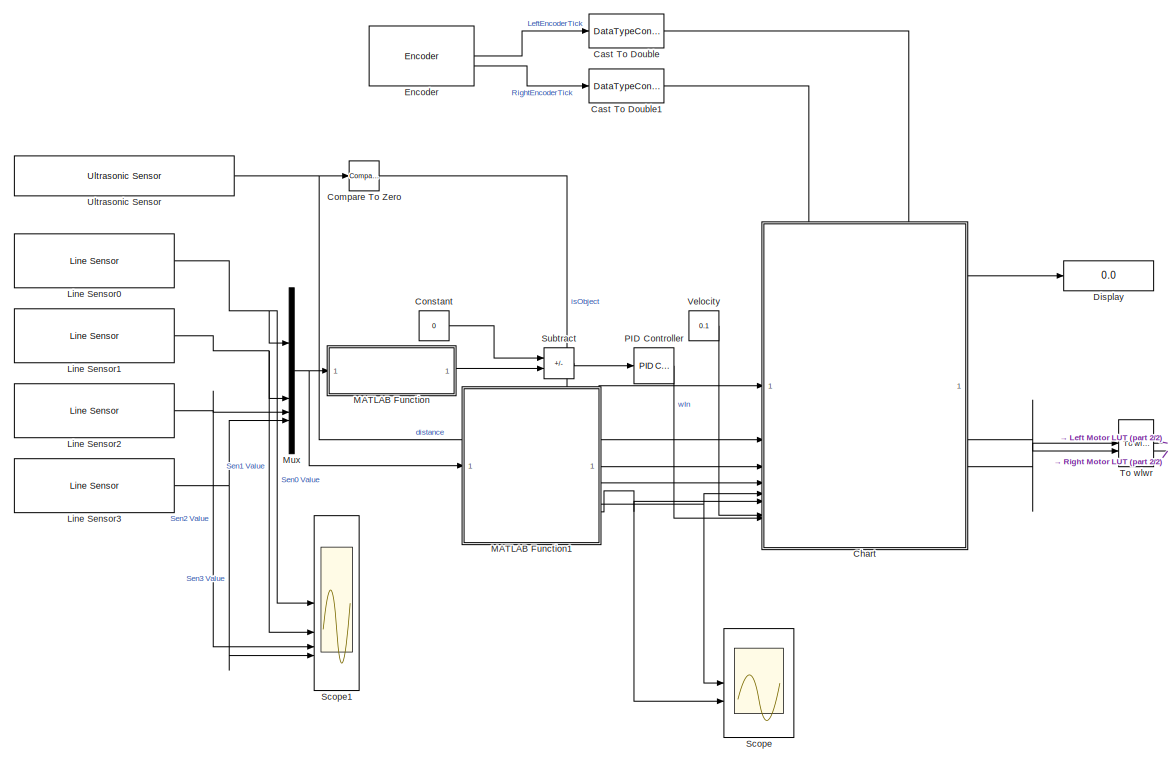
[diagram: root canvas - part 1/2, left side, full height]
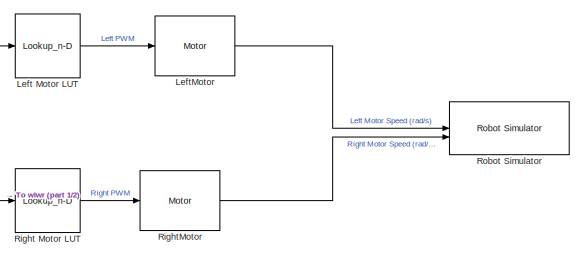
[diagram: root canvas - part 2/2, middle right region]
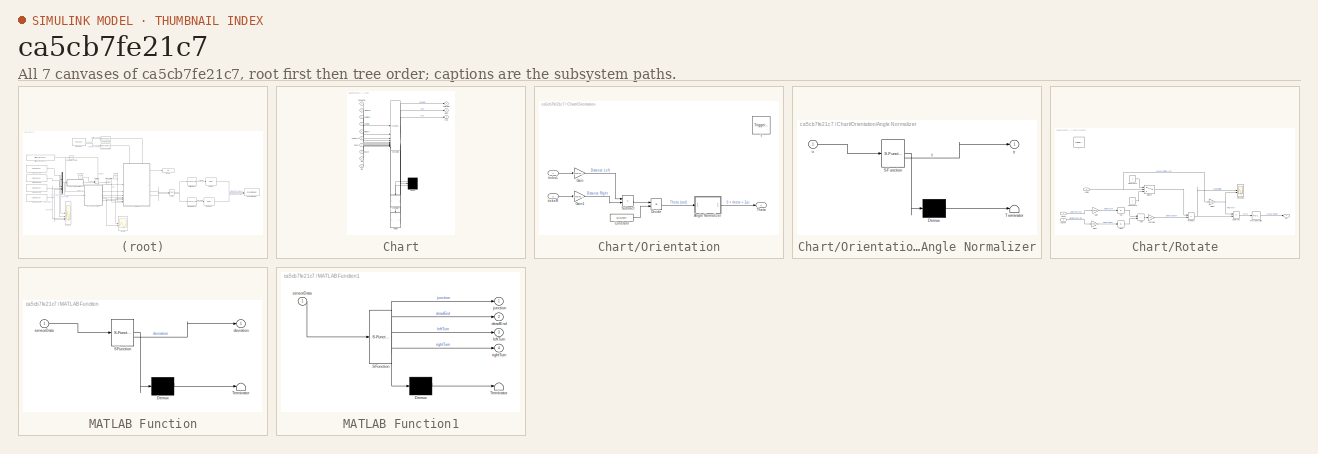
[diagram: thumbnail index - all 7 canvases of the model, root first then tree order]
MODEL slx_ca5cb7fe21c7
KIND model
CONFIG AbsTol = auto
CONFIG EnableMultiTasking = off
CONFIG FixedStep = 0.01
CONFIG MaxStep = auto
CONFIG MinStep = auto
CONFIG RelTol = 1e-3
CONFIG SampleTimeConstraint = Unconstrained
CONFIG SolverName = FixedStepDiscrete
CONFIG StartTime = 0.0
CONFIG StopTime = 60
BLOCK [DataTypeConversion] Cast To Double
  OutDataTypeStr = double
  RndMeth = Floor
  SaturateOnIntegerOverflow = off
BLOCK [DataTypeConversion] Cast To Double1
  OutDataTypeStr = double
  RndMeth = Floor
  SaturateOnIntegerOverflow = off
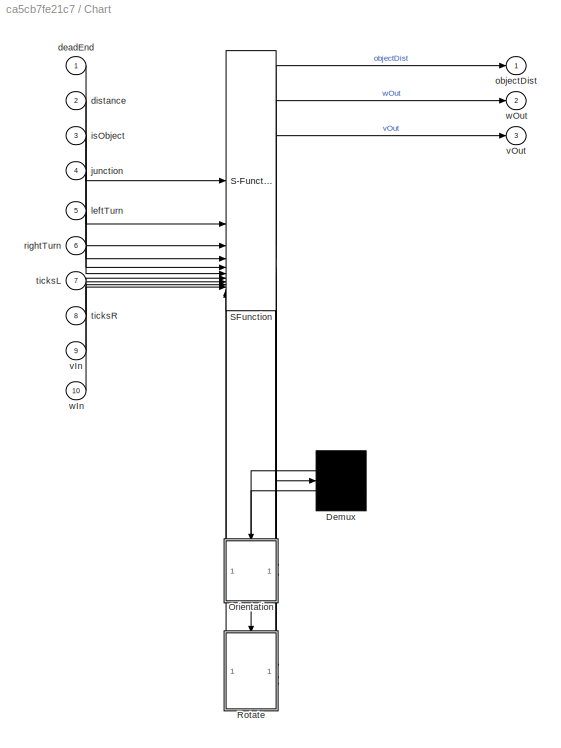
BLOCK [SubSystem] Chart
  ErrorFcn = Stateflow.Translate.translate
  PermitHierarchicalResolution = ExplicitOnly
  PortSchema = {"entries":[{"content":{"sides":[{"content":{"connectorIds":["In3","In2","In9","In10","In4","In1","In5","In6"]},"type":"ConnectorPlacement.EquallySpacedRectSide","uuid":"efd22f5c-d242-47ac-9ce5-ae35ef3018bc"},{"content":{"connectorIds":["Out1","Out3","Out2"],"side":"RIGHT"},"type":"ConnectorPlacement.EquallySpacedRectSide","uuid":"ec38a75a-6eb1-4d24-9035-1110e38d6749"},{"content":{"connectorIds":[...<+434ch>
  SFBlockType = Chart
  TreatAsAtomicUnit = on
BLOCK [Demux] Chart/ Demux 
  Outputs = 2
BLOCK [S-Function] Chart/ SFunction 
  EnableBusSupport = on
  FunctionName = sf_sfun
  PortCounts = [12 9]
  SFcnIsStateOwnerBlock = off
  SFunctionDeploymentMode = off
  Tag = Stateflow S-Function 3
BLOCK [SubSystem] Chart/Orientation
  PreDeleteFcn = Stateflow.SLINSF.SimulinkMan.removePreDeleteFcn
  UndoDeleteFcn = Stateflow.SLINSF.SimulinkMan.restorePreDeleteFcn
BLOCK [SubSystem] Chart/Orientation/Angle Normalizer
  ErrorFcn = Stateflow.Translate.translate
  LibrarySourceBlock = simulink/User-Defined\nFunctions/MATLAB Function
  PermitHierarchicalResolution = ExplicitOnly
  SFBlockType = MATLAB Function
  TreatAsAtomicUnit = on
BLOCK [Demux] Chart/Orientation/Angle Normalizer/ Demux 
  Outputs = 1
BLOCK [S-Function] Chart/Orientation/Angle Normalizer/ SFunction 
  EnableBusSupport = on
  FunctionName = sf_sfun
  PortCounts = [1 2]
  SFcnIsStateOwnerBlock = off
  SFunctionDeploymentMode = off
  Tag = Stateflow S-Function 4
BLOCK [Terminator] Chart/Orientation/Angle Normalizer/ Terminator 
BLOCK [Inport] Chart/Orientation/Angle Normalizer/u
BLOCK [Outport] Chart/Orientation/Angle Normalizer/y
BLOCK [Constant] Chart/Orientation/Constant
  Value = axleLength
BLOCK [Product] Chart/Orientation/Divide
  Inputs = */
BLOCK [Gain] Chart/Orientation/Gain
  Gain = (2*pi*wheelR)/ticksPerRot
BLOCK [Gain] Chart/Orientation/Gain1
  Gain = (2*pi*wheelR)/ticksPerRot
BLOCK [Sum] Chart/Orientation/Subtract
  IconShape = rectangular
  Inputs = -+
BLOCK [Outport] Chart/Orientation/Theta
BLOCK [TriggerPort] Chart/Orientation/f
  CopyFcn = Stateflow.SLINSF.SimulinkMan.removeBlockPreDeleteFcn
  PreDeleteFcn = Stateflow.SLINSF.SimulinkMan.unsafePredeleteFcn
  StatesWhenEnabling = held
  TriggerType = function-call
  VariantControl = (inherit)
BLOCK [Inport] Chart/Orientation/ticksL
  OutDataTypeStr = double
  PortDimensions = 1
  SignalType = real
  VarSizeSig = No
BLOCK [Inport] Chart/Orientation/ticksR
  OutDataTypeStr = double
  Port = 2
  PortDimensions = 1
  SignalType = real
  VarSizeSig = No
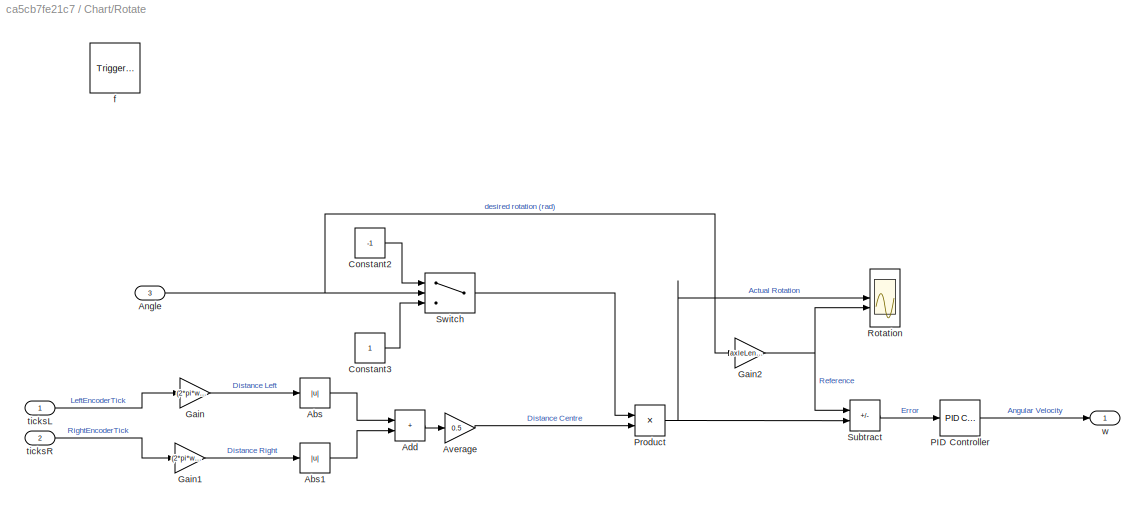
BLOCK [SubSystem] Chart/Rotate
  PreDeleteFcn = Stateflow.SLINSF.SimulinkMan.removePreDeleteFcn
  UndoDeleteFcn = Stateflow.SLINSF.SimulinkMan.restorePreDeleteFcn
BLOCK [Abs] Chart/Rotate/Abs
  SaturateOnIntegerOverflow = off
BLOCK [Abs] Chart/Rotate/Abs1
  SaturateOnIntegerOverflow = off
BLOCK [Sum] Chart/Rotate/Add
  IconShape = rectangular
BLOCK [Inport] Chart/Rotate/Angle
  OutDataTypeStr = double
  Port = 3
  PortDimensions = 1
  SignalType = real
  VarSizeSig = No
BLOCK [Gain] Chart/Rotate/Average
  Gain = 0.5
BLOCK [Constant] Chart/Rotate/Constant2
  Value = -1
BLOCK [Constant] Chart/Rotate/Constant3
BLOCK [Gain] Chart/Rotate/Gain
  Gain = (2*pi*wheelR)/ticksPerRot
BLOCK [Gain] Chart/Rotate/Gain1
  Gain = (2*pi*wheelR)/ticksPerRot
BLOCK [Gain] Chart/Rotate/Gain2
  Gain = axleLength*0.5
BLOCK [Reference] Chart/Rotate/PID Controller  REF=slpidlib/PID Controller
  LibrarySourceBlock = simulink/Continuous/PID Controller
  SourceBlock = slpidlib/PID Controller
  SourceType = PID 1dof
BLOCK [Product] Chart/Rotate/Product
BLOCK [Scope] Chart/Rotate/Rotation
  Floating = off
  NumInputPorts = 2
  ScopeSpecificationString = Simulink.scopes.TimeScopeBlockCfg('CurrentConfiguration', extmgr.ConfigurationSet(extmgr.Configuration('Core','General UI',true),extmgr.Configuration('Core','Source UI',true),extmgr.Configuration('Sources','WiredSimulink',true,'DataLoggingVariableName','ScopeData1'),extmgr.Configuration('Visuals','Time Domain',true,'SerializedDisplays',{struct('MinYLimReal','-0.014','MaxYLimReal','0.126','YLabelRe...<+1745ch>
BLOCK [Sum] Chart/Rotate/Subtract
  IconShape = rectangular
  Inputs = +-
BLOCK [Switch] Chart/Rotate/Switch
  InputSameDT = off
  Priority = 1
  SaturateOnIntegerOverflow = off
BLOCK [TriggerPort] Chart/Rotate/f
  CopyFcn = Stateflow.SLINSF.SimulinkMan.removeBlockPreDeleteFcn
  PreDeleteFcn = Stateflow.SLINSF.SimulinkMan.unsafePredeleteFcn
  StatesWhenEnabling = held
  TriggerType = function-call
  VariantControl = (inherit)
BLOCK [Inport] Chart/Rotate/ticksL
  OutDataTypeStr = double
  PortDimensions = 1
  SignalType = real
  VarSizeSig = No
BLOCK [Inport] Chart/Rotate/ticksR
  OutDataTypeStr = double
  Port = 2
  PortDimensions = 1
  SignalType = real
  VarSizeSig = No
BLOCK [Outport] Chart/Rotate/w
BLOCK [Inport] Chart/deadEnd
BLOCK [Inport] Chart/distance
  Port = 2
BLOCK [Inport] Chart/isObject
  Port = 3
BLOCK [Inport] Chart/junction
  Port = 4
BLOCK [Inport] Chart/leftTurn
  Port = 5
BLOCK [Outport] Chart/objectDist
BLOCK [Inport] Chart/rightTurn
  Port = 6
BLOCK [Inport] Chart/ticksL
  Port = 7
BLOCK [Inport] Chart/ticksR
  Port = 8
BLOCK [Inport] Chart/vIn
  Port = 9
BLOCK [Outport] Chart/vOut
  Port = 3
BLOCK [Inport] Chart/wIn
  Port = 10
BLOCK [Outport] Chart/wOut
  Port = 2
BLOCK [Reference] Compare To Zero  REF=simulink/Logic and Bit
Operations/Compare
To Zero
  SourceBlock = simulink/Logic and Bit\nOperations/Compare\nTo Zero
  SourceType = Compare To Zero
BLOCK [Constant] Constant
  Value = 0
BLOCK [Display] Display
  Decimation = 1
BLOCK [Reference] Encoder  REF=mobileRoboticsTrainingLib/Encoder
  Priority = 2
  SourceBlock = mobileRoboticsTrainingLib/Encoder
  SourceProductName = Mobile Robotics Training Library
  SourceType = Encoder Simulation
BLOCK [Lookup_n-D] Left Motor LUT
  BreakpointsForDimension1 = WheelSpeed
  ExtrapMethod = Clip
  InputPortMap = u0
  InternalRulePriority = Speed
  InterpMethod = Nearest
  NumberOfTableDimensions = 1
  RndMeth = Simplest
  Table = InputPWM
BLOCK [Reference] LeftMotor  REF=mobileRoboticsTrainingLib/Motor
  SourceBlock = mobileRoboticsTrainingLib/Motor
  SourceProductName = Mobile Robotics Training Library
  SourceType = Motor Model
BLOCK [Reference] Line Sensor0  REF=mobileRoboticsTrainingLib/Line Sensor
  SourceBlock = mobileRoboticsTrainingLib/Line Sensor
  SourceProductName = Mobile Robotics Training Library
  SourceType = Line Sensor Simulation
BLOCK [Reference] Line Sensor1  REF=mobileRoboticsTrainingLib/Line Sensor
  SourceBlock = mobileRoboticsTrainingLib/Line Sensor
  SourceProductName = Mobile Robotics Training Library
  SourceType = Line Sensor Simulation
BLOCK [Reference] Line Sensor2  REF=mobileRoboticsTrainingLib/Line Sensor
  SourceBlock = mobileRoboticsTrainingLib/Line Sensor
  SourceProductName = Mobile Robotics Training Library
  SourceType = Line Sensor Simulation
BLOCK [Reference] Line Sensor3  REF=mobileRoboticsTrainingLib/Line Sensor
  SourceBlock = mobileRoboticsTrainingLib/Line Sensor
  SourceProductName = Mobile Robotics Training Library
  SourceType = Line Sensor Simulation
BLOCK [SubSystem] MATLAB Function
  ErrorFcn = Stateflow.Translate.translate
  LibrarySourceBlock = simulink/User-Defined\nFunctions/MATLAB Function
  PermitHierarchicalResolution = ExplicitOnly
  SFBlockType = MATLAB Function
  TreatAsAtomicUnit = on
BLOCK [Demux] MATLAB Function/ Demux 
  Outputs = 1
BLOCK [S-Function] MATLAB Function/ SFunction 
  EnableBusSupport = on
  FunctionName = sf_sfun
  PortCounts = [1 2]
  SFcnIsStateOwnerBlock = off
  SFunctionDeploymentMode = off
  Tag = Stateflow S-Function 2
BLOCK [Terminator] MATLAB Function/ Terminator 
BLOCK [Outport] MATLAB Function/deviation
BLOCK [Inport] MATLAB Function/sensorData
BLOCK [SubSystem] MATLAB Function1
  ErrorFcn = Stateflow.Translate.translate
  LibrarySourceBlock = simulink/User-Defined\nFunctions/MATLAB Function
  PermitHierarchicalResolution = ExplicitOnly
  SFBlockType = MATLAB Function
  TreatAsAtomicUnit = on
BLOCK [Demux] MATLAB Function1/ Demux 
  Outputs = 1
BLOCK [S-Function] MATLAB Function1/ SFunction 
  EnableBusSupport = on
  FunctionName = sf_sfun
  PortCounts = [1 5]
  SFcnIsStateOwnerBlock = off
  SFunctionDeploymentMode = off
  Tag = Stateflow S-Function 1
BLOCK [Terminator] MATLAB Function1/ Terminator 
BLOCK [Outport] MATLAB Function1/deadEnd
  Port = 2
BLOCK [Outport] MATLAB Function1/junction
BLOCK [Outport] MATLAB Function1/leftTurn
  Port = 3
BLOCK [Outport] MATLAB Function1/rightTurn
  Port = 4
BLOCK [Inport] MATLAB Function1/sensorData
BLOCK [Mux] Mux
  DisplayOption = bar
BLOCK [Reference] PID Controller  REF=slpidlib/PID Controller
  LibrarySourceBlock = simulink/Continuous/PID Controller
  SourceBlock = slpidlib/PID Controller
  SourceType = PID 1dof
BLOCK [Lookup_n-D] Right Motor LUT
  BreakpointsForDimension1 = WheelSpeed
  ExtrapMethod = Clip
  InputPortMap = u0
  InternalRulePriority = Speed
  InterpMethod = Nearest
  NumberOfTableDimensions = 1
  RndMeth = Simplest
  Table = InputPWM
BLOCK [Reference] RightMotor  REF=mobileRoboticsTrainingLib/Motor
  SourceBlock = mobileRoboticsTrainingLib/Motor
  SourceProductName = Mobile Robotics Training Library
  SourceType = Motor Model
BLOCK [Reference] Robot Simulator  REF=mobileRoboticsTrainingLib/Robot Simulator
  Priority = 99
  SourceBlock = mobileRoboticsTrainingLib/Robot Simulator
  SourceProductName = Mobile Robotics Training Library
  SourceType = Robot Simulator
BLOCK [Scope] Scope
  Floating = off
  NumInputPorts = 2
  ScopeSpecificationString = Simulink.scopes.TimeScopeBlockCfg('CurrentConfiguration', extmgr.ConfigurationSet(extmgr.Configuration('Core','General UI',true),extmgr.Configuration('Core','Source UI',true),extmgr.Configuration('Sources','WiredSimulink',true),extmgr.Configuration('Visuals','Time Domain',true,'SerializedDisplays',{struct('MinYLimReal','-0.02183','MaxYLimReal','1.01784','YLabelReal','','MinYLimMag','0.00000','MaxY...<+1431ch>
BLOCK [Scope] Scope1
  Floating = off
  NumInputPorts = 4
  ScopeSpecificationString = Simulink.scopes.TimeScopeBlockCfg('CurrentConfiguration', extmgr.ConfigurationSet(extmgr.Configuration('Core','General UI',true),extmgr.Configuration('Core','Source UI',true),extmgr.Configuration('Sources','WiredSimulink',true,'DataLoggingVariableName','ScopeData1'),extmgr.Configuration('Visuals','Time Domain',true,'SerializedDisplays',{struct('MinYLimReal','2794.36132','MaxYLimReal','2901.63813',...<+1514ch>
BLOCK [Sum] Subtract
  IconShape = rectangular
  Inputs = +-
BLOCK [Reference] To wlwr  REF=mobileRoboticsTrainingLib/To wlwr
  SourceBlock = mobileRoboticsTrainingLib/To wlwr
  SourceProductName = Mobile Robotics Training Library
  SourceType = To wlwr
BLOCK [Reference] Ultrasonic Sensor  REF=mobileRoboticsTrainingLib/Ultrasonic Sensor
  SourceBlock = mobileRoboticsTrainingLib/Ultrasonic Sensor
  SourceProductName = Mobile Robotics Training Library
  SourceType = Ultrasonic Sensor Simulation
BLOCK [Constant] Velocity
  Value = 0.1
LINE Cast To Double1:1 -> Chart:8
LINE Cast To Double:1 -> Chart:7
LINE Chart:1 -> Display:1
LINE Chart:2 -> To wlwr:2
LINE Chart:3 -> To wlwr:1
LINE Compare To Zero:1 -> Chart:3
LINE Constant:1 -> Subtract:1
LINE Encoder:1 -> Cast To Double:1
LINE Encoder:2 -> Cast To Double1:1
LINE Left Motor LUT:1 -> LeftMotor:1
LINE LeftMotor:1 -> Robot Simulator:1
NET Line Sensor0:1 -> Mux:1, Scope1:1
NET Line Sensor1:1 -> Mux:2, Scope1:2
NET Line Sensor2:1 -> Mux:3, Scope1:3
NET Line Sensor3:1 -> Mux:4, Scope1:4
LINE MATLAB Function1:1 -> Chart:4
LINE MATLAB Function1:2 -> Chart:1
NET MATLAB Function1:3 -> Chart:5, Scope:1
NET MATLAB Function1:4 -> Chart:6, Scope:2
LINE MATLAB Function:1 -> Subtract:2
NET Mux:1 -> MATLAB Function1:1, MATLAB Function:1
LINE PID Controller:1 -> Chart:10
LINE Right Motor LUT:1 -> RightMotor:1
LINE RightMotor:1 -> Robot Simulator:2
LINE Subtract:1 -> PID Controller:1
LINE To wlwr:1 -> Left Motor LUT:1
LINE To wlwr:2 -> Right Motor LUT:1
NET Ultrasonic Sensor:1 -> Chart:2, Compare To Zero:1
LINE Velocity:1 -> Chart:9
note: NET lines group one-source signal fan-out (src -> all destinations, sorted); 1:1 wires keep LINE
CHART MATLAB Function1 states=1 transitions=1
  STATE_LABEL 'eML_blk_kernel()'
  STATE_LABEL 'SCRIPT:\nfunction [junction, deadEnd, leftTurn, rightTurn]  = fcn(sensorData)\ntotalZero = 0;\ndeadEnd = false;\njunction = false;\nleftTurn = false;\nrightTurn = false;\n\n% Change depending on physical sensors\nenviroVal = 2800;\nlineVal = 2900;\n\n% Total number of Sensors not on line\nfor i=1:1:size(sensorData, 1)\n    if (sensorData(i) == enviroVal)\n        totalZero = totalZero + 1;\n    end\nend\n\nif sensor...<+503ch>'
CHART MATLAB Function states=1 transitions=1
  STATE_LABEL 'eML_blk_kernel()'
  STATE_LABEL 'SCRIPT:\nfunction deviation = fcn(sensorData)\ntotalZero = 0;\nfor i=1:1:size(sensorData, 1)\n    if (sensorData(i) == 2800)\n        totalZero = totalZero + 1;\n    end\nend\n\nif totalZero == 0\n    deviation = -10;\nelse\n    deviation = ((sensorData(1)*-2)+(sensorData(2)*-1)+(sensorData(3)*1)+(sensorData(4)*2))/totalZero;\nend\n'
CHART Chart states=19 transitions=48
  STATE_LABEL 'turnRight1\n\nentry:\nthetaInitial = Orientation(ticksL, ticksR); % Angle before rotation\nvOut = 0.02;\nduring:\nwOut  = Rotate(ticksL, ticksR, -pi/2);\nrotation = abs(Orientation(ticksL, ticksR) - thetaInitial);'
  STATE_LABEL 'turnLeft1\n\nentry:\nthetaInitial = Orientation(ticksL, ticksR);\nvOut = 0.02;\nduring:\nwOut  = Rotate(ticksL, ticksR, pi/2);\nrotation = abs(Orientation(ticksL, ticksR) - abs(thetaInitial));'
  STATE_LABEL 'lineFollowing1\n\nentry, during:\nwOut = wIn  % from PI controller\nvOut = vIn % Constant\nj = 0;\n'
  STATE_LABEL 'atClosestObj\n% various options\nentry:\nwOut = 100;'
  STATE_LABEL 'updateCounter\nentry:\ni = i-1;\nduring:\nwOut = wIn;'
  STATE_LABEL 'returnPath = RemoveBranches(trackerArray)'
  STATE_LABEL "SCRIPT:\nfunction returnPath = RemoveBranches(trackerArray)\n\nreturnPath = trackerArray;\ncoder.varsize('returnPath');\n\nfor i = length(returnPath):-1:2\n    if returnPath(i) == 0\n        returnPath(i) = [];\n    elseif returnPath(i) == returnPath(i-1)\n        returnPath(i) = 2;\n        returnPath(i-1) = [];\n    end\nend\n\nend"
  STATE_LABEL 'turnRight\n\nentry:\nthetaInitial = Orientation(ticksL, ticksR); % Angle before rotation\nvOut = 0.02;\nduring:\nwOut  = Rotate(ticksL, ticksR, -pi/2);\nrotation = abs(Orientation(ticksL, ticksR) - thetaInitial);'
  STATE_LABEL 'turnLeft\n\nentry:\nthetaInitial = Orientation(ticksL, ticksR);\nvOut = 0.02;\nduring:\nwOut  = Rotate(ticksL, ticksR, pi/2);\nrotation = abs(Orientation(ticksL, ticksR) - abs(thetaInitial));'
  STATE_LABEL 'Theta = Orientation(ticksL,ticksR)'
  STATE_LABEL 'turnAround1\n\nentry:\nthetaInitial = Orientation(ticksL, ticksR); % Angle before rotation\nvOut = 0; % no linear velocity\nduring:\nwOut = Rotate(ticksL, ticksR, pi); % Turn 180 degrees\nrotation = abs(Orientation(ticksL, ticksR)- thetaInitial);\n'
  STATE_LABEL 'initialize\n\nentry:\nthetaInitial = 0;\nobjectDist = -1;\nrotation = -1;\ntrackerArray = zeros(10, 1);\ni = 1;\nj = 0;\nminDist = 100;\nprevTurn = 1 % 1 = right, -1 = left\n% default: right\n'
  STATE_LABEL 'lineFollowing\n\nentry, during:\nwOut = wIn  % from PI controller\nvOut = vIn % Constant\nj = 0;\n'
  STATE_LABEL 'atJunction\n% various options\nentry:\nvOut, wOut = 0;\nj = j + 1;'
  STATE_LABEL 'w = Rotate(ticksL,ticksR,Angle)'
  STATE_LABEL 'finishLine\n\nentry:\npath = RemoveBranches(trackerArray);\ni = length(path);'
  STATE_LABEL 'unoReverse\n\nentry:\nwOut = 0;\nvOut = -0.03\n'
  STATE_LABEL 'turnAround\n\nentry:\nthetaInitial = Orientation(ticksL, ticksR); % Angle before rotation\nvOut = 0; % no linear velocity\nduring:\nwOut = Rotate(ticksL, ticksR, pi); % Turn 180 degrees\nrotation = abs(Orientation(ticksL, ticksR)- thetaInitial);\n'
  STATE_LABEL 'measureObject\n% Record distance to object\nentry:\nobjectDist = distance;\n% Change to be able to hold at least two values'
  STATE_LABEL 'Compare\n% Compare distance\n% Clear array\nentry:\nminDist = objectDist;\ntrackerArray = zeros(10, 1);\ni = 1;\n'
CHART Chart/Orientation/Angle Normalizer states=1 transitions=1
  STATE_LABEL 'eML_blk_kernel()'
  STATE_LABEL 'SCRIPT:\nfunction y = fcn(u)\nif u>2*pi\n    y = mod(real(u),2*pi);\nelse\n    y = u;\nend\n'
CHART  states=0 transitions=0
CHART  states=0 transitions=0
CHART  states=0 transitions=0
CHART  states=0 transitions=0
